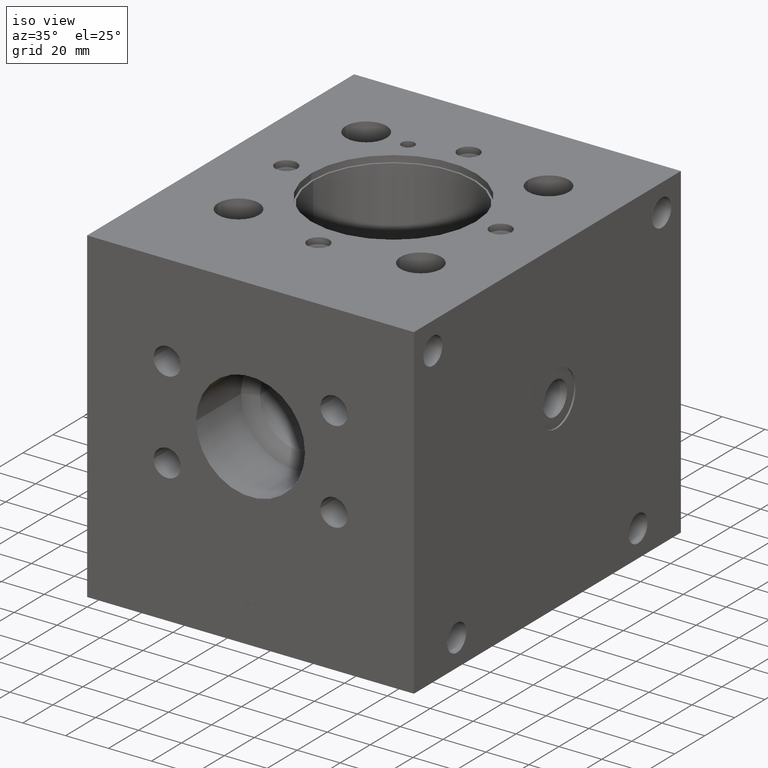
[diagram: clean part render]
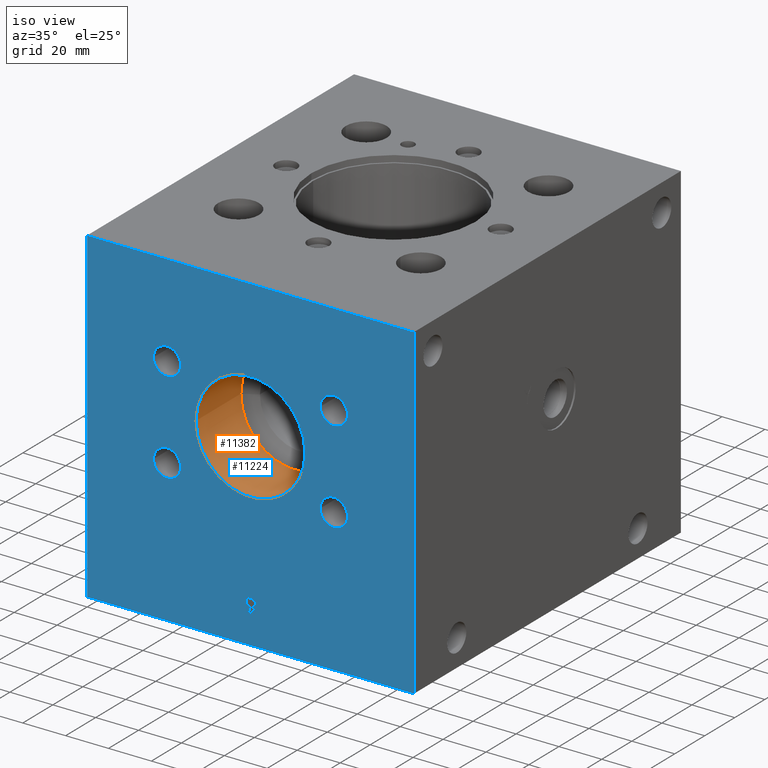
[diagram: same view with the hole feature highlighted: cylindrical wall and planar end face, labeled with their STEP entity ids]
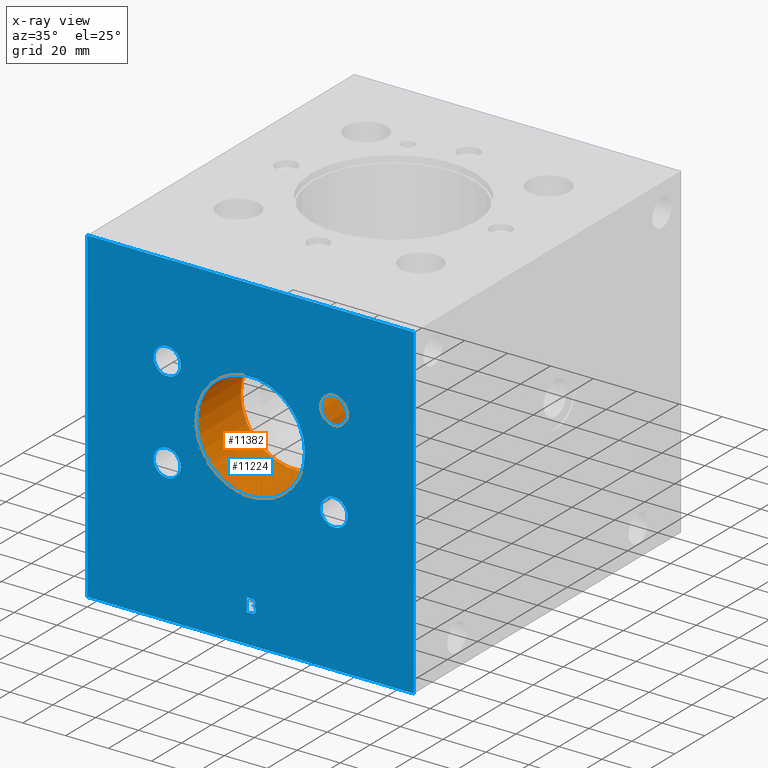
[diagram: x-ray of the same camera — body ghosted, the hole faces saturated]
A machine part, iso view. The highlighted faces form one hole feature of diameter 50.8 mm: the cylindrical wall (entity #11382, orange) and its adjacent planar end face (entity #11224, blue) — they share a circular edge in the B-rep.
The next image is the same camera in x-ray (body ghosted, the hole faces saturated) — the bore reads through the body.
Wall:
#54=CYLINDRICAL_SURFACE('',#12035,25.4);
#168=CIRCLE('',#11771,25.4);
#169=CIRCLE('',#11772,25.4);
#285=CIRCLE('',#12033,25.4);
#286=CIRCLE('',#12034,25.4);
#1310=FACE_OUTER_BOUND('',#1964,.T.);
#1964=EDGE_LOOP('',(#9668,#9669,#9670,#9671,#9672,#9673));
#3117=LINE('',#19004,#4220);
#4220=VECTOR('',#14406,25.4);
#5017=VERTEX_POINT('',#18148);
#5018=VERTEX_POINT('',#18149);
#5230=VERTEX_POINT('',#18998);
#5231=VERTEX_POINT('',#18999);
#6428=EDGE_CURVE('',#5017,#5018,#168,.T.);
#6429=EDGE_CURVE('',#5018,#5017,#169,.T.);
#6755=EDGE_CURVE('',#5230,#5231,#285,.T.);
#6757=EDGE_CURVE('',#5231,#5230,#286,.T.);
#6758=EDGE_CURVE('',#5018,#5231,#3117,.T.);
#9668=ORIENTED_EDGE('',*,*,#6428,.F.);
#9669=ORIENTED_EDGE('',*,*,#6429,.F.);
#9670=ORIENTED_EDGE('',*,*,#6758,.T.);
#9671=ORIENTED_EDGE('',*,*,#6755,.F.);
#9672=ORIENTED_EDGE('',*,*,#6757,.F.);
#9673=ORIENTED_EDGE('',*,*,#6758,.F.);
#11382=ADVANCED_FACE('',(#1310),#54,.F.);
#11771=AXIS2_PLACEMENT_3D('',#18150,#13678,#13679);
#11772=AXIS2_PLACEMENT_3D('',#18151,#13680,#13681);
#12033=AXIS2_PLACEMENT_3D('',#19000,#14399,#14400);
#12034=AXIS2_PLACEMENT_3D('',#19002,#14402,#14403);
#12035=AXIS2_PLACEMENT_3D('',#19003,#14404,#14405);
#13678=DIRECTION('center_axis',(0.,1.,0.));
#13679=DIRECTION('ref_axis',(1.,0.,0.));
#13680=DIRECTION('center_axis',(0.,1.,0.));
#13681=DIRECTION('ref_axis',(1.,0.,0.));
#14399=DIRECTION('center_axis',(0.,-1.,0.));
#14400=DIRECTION('ref_axis',(1.,0.,0.));
#14402=DIRECTION('center_axis',(0.,-1.,0.));
#14403=DIRECTION('ref_axis',(1.,0.,0.));
#14404=DIRECTION('center_axis',(0.,-1.,0.));
#14405=DIRECTION('ref_axis',(1.,0.,0.));
#14406=DIRECTION('',(0.,1.,0.));
#18148=CARTESIAN_POINT('',(101.6,0.,87.9094));
#18149=CARTESIAN_POINT('',(50.8,0.,87.9094));
#18150=CARTESIAN_POINT('Origin',(76.2,0.,87.9094));
#18151=CARTESIAN_POINT('Origin',(76.2,0.,87.9094));
#18998=CARTESIAN_POINT('',(101.6,29.7942,87.9094));
#18999=CARTESIAN_POINT('',(50.8,29.7942,87.9094));
#19000=CARTESIAN_POINT('Origin',(76.2,29.7942,87.9094));
#19002=CARTESIAN_POINT('Origin',(76.2,29.7942,87.9094));
#19003=CARTESIAN_POINT('Origin',(76.2,14.8971,87.9094));
#19004=CARTESIAN_POINT('',(50.8,14.8971,87.9094));
End face:
#160=CIRCLE('',#11763,6.35);
#161=CIRCLE('',#11764,6.35);
#162=CIRCLE('',#11765,6.35);
#163=CIRCLE('',#11766,6.35);
#164=CIRCLE('',#11767,6.35);
#165=CIRCLE('',#11768,6.35);
#166=CIRCLE('',#11769,6.35);
#167=CIRCLE('',#11770,6.35);
#168=CIRCLE('',#11771,25.4);
#169=CIRCLE('',#11772,25.4);
#461=FACE_BOUND('',#1783,.T.);
#462=FACE_BOUND('',#1784,.T.);
#463=FACE_BOUND('',#1785,.T.);
#464=FACE_BOUND('',#1786,.T.);
#465=FACE_BOUND('',#1787,.T.);
#466=FACE_BOUND('',#1788,.T.);
#685=B_SPLINE_CURVE_WITH_KNOTS('',2,(#17999,#18000,#18001,#18002),
 .UNSPECIFIED.,.F.,.F.,(3,1,3),(0.,1.,2.),.UNSPECIFIED.);
#687=B_SPLINE_CURVE_WITH_KNOTS('',2,(#18026,#18027,#18028,#18029),
 .UNSPECIFIED.,.F.,.F.,(3,1,3),(0.,1.,2.),.UNSPECIFIED.);
#689=B_SPLINE_CURVE_WITH_KNOTS('',2,(#18045,#18046,#18047,#18048),
 .UNSPECIFIED.,.F.,.F.,(3,1,3),(0.,1.,2.),.UNSPECIFIED.);
#691=B_SPLINE_CURVE_WITH_KNOTS('',2,(#18064,#18065,#18066,#18067),
 .UNSPECIFIED.,.F.,.F.,(3,1,3),(0.,1.,2.),.UNSPECIFIED.);
#693=B_SPLINE_CURVE_WITH_KNOTS('',2,(#18101,#18102,#18103,#18104),
 .UNSPECIFIED.,.F.,.F.,(3,1,3),(0.,1.,2.),.UNSPECIFIED.);
#695=B_SPLINE_CURVE_WITH_KNOTS('',2,(#18119,#18120,#18121,#18122),
 .UNSPECIFIED.,.F.,.F.,(3,1,3),(0.,1.,2.),.UNSPECIFIED.);
#1152=FACE_OUTER_BOUND('',#1782,.T.);
#1782=EDGE_LOOP('',(#8918,#8919,#8920,#8921));
#1783=EDGE_LOOP('',(#8922,#8923,#8924,#8925,#8926,#8927,#8928,#8929,#8930,
#8931));
#1784=EDGE_LOOP('',(#8932,#8933));
#1785=EDGE_LOOP('',(#8934,#8935));
#1786=EDGE_LOOP('',(#8936,#8937));
#1787=EDGE_LOOP('',(#8938,#8939));
#1788=EDGE_LOOP('',(#8940,#8941));
#2409=LINE('',#16615,#3512);
#2870=LINE('',#17761,#3973);
#2901=LINE('',#18013,#4004);
#2907=LINE('',#18076,#4010);
#2910=LINE('',#18082,#4013);
#2913=LINE('',#18088,#4016);
#2917=LINE('',#18130,#4020);
#2918=LINE('',#18131,#4021);
#3512=VECTOR('',#12778,10.);
#3973=VECTOR('',#13553,10.);
#4004=VECTOR('',#13634,10.);
#4010=VECTOR('',#13642,10.);
#4013=VECTOR('',#13647,10.);
#4016=VECTOR('',#13652,10.);
#4020=VECTOR('',#13660,10.);
#4021=VECTOR('',#13661,10.);
#4587=VERTEX_POINT('',#16612);
#4588=VERTEX_POINT('',#16614);
#4940=VERTEX_POINT('',#17760);
#4988=VERTEX_POINT('',#17997);
#4989=VERTEX_POINT('',#17998);
#4992=VERTEX_POINT('',#18012);
#4994=VERTEX_POINT('',#18025);
#4996=VERTEX_POINT('',#18044);
#4998=VERTEX_POINT('',#18063);
#5000=VERTEX_POINT('',#18075);
#5002=VERTEX_POINT('',#18081);
#5004=VERTEX_POINT('',#18087);
#5006=VERTEX_POINT('',#18100);
#5008=VERTEX_POINT('',#18129);
#5009=VERTEX_POINT('',#18132);
#5010=VERTEX_POINT('',#18133);
#5011=VERTEX_POINT('',#18136);
#5012=VERTEX_POINT('',#18137);
#5013=VERTEX_POINT('',#18140);
#5014=VERTEX_POINT('',#18141);
#5015=VERTEX_POINT('',#18144);
#5016=VERTEX_POINT('',#18145);
#5017=VERTEX_POINT('',#18148);
#5018=VERTEX_POINT('',#18149);
#5830=EDGE_CURVE('',#4587,#4588,#2409,.T.);
#6325=EDGE_CURVE('',#4587,#4940,#2870,.T.);
#6388=EDGE_CURVE('',#4988,#4989,#685,.T.);
#6392=EDGE_CURVE('',#4992,#4988,#2901,.T.);
#6395=EDGE_CURVE('',#4994,#4992,#687,.T.);
#6398=EDGE_CURVE('',#4996,#4994,#689,.T.);
#6401=EDGE_CURVE('',#4998,#4996,#691,.T.);
#6404=EDGE_CURVE('',#5000,#4998,#2907,.T.);
#6407=EDGE_CURVE('',#5002,#5000,#2910,.T.);
#6410=EDGE_CURVE('',#5004,#5002,#2913,.T.);
#6413=EDGE_CURVE('',#5006,#5004,#693,.T.);
#6416=EDGE_CURVE('',#4989,#5006,#695,.T.);
#6418=EDGE_CURVE('',#4940,#5008,#2917,.T.);
#6419=EDGE_CURVE('',#4588,#5008,#2918,.T.);
#6420=EDGE_CURVE('',#5009,#5010,#160,.T.);
#6421=EDGE_CURVE('',#5010,#5009,#161,.T.);
#6422=EDGE_CURVE('',#5011,#5012,#162,.T.);
#6423=EDGE_CURVE('',#5012,#5011,#163,.T.);
#6424=EDGE_CURVE('',#5013,#5014,#164,.T.);
#6425=EDGE_CURVE('',#5014,#5013,#165,.T.);
#6426=EDGE_CURVE('',#5015,#5016,#166,.T.);
#6427=EDGE_CURVE('',#5016,#5015,#167,.T.);
#6428=EDGE_CURVE('',#5017,#5018,#168,.T.);
#6429=EDGE_CURVE('',#5018,#5017,#169,.T.);
#8918=ORIENTED_EDGE('',*,*,#6325,.T.);
#8919=ORIENTED_EDGE('',*,*,#6418,.T.);
#8920=ORIENTED_EDGE('',*,*,#6419,.F.);
#8921=ORIENTED_EDGE('',*,*,#5830,.F.);
#8922=ORIENTED_EDGE('',*,*,#6388,.T.);
#8923=ORIENTED_EDGE('',*,*,#6416,.T.);
#8924=ORIENTED_EDGE('',*,*,#6413,.T.);
#8925=ORIENTED_EDGE('',*,*,#6410,.T.);
#8926=ORIENTED_EDGE('',*,*,#6407,.T.);
#8927=ORIENTED_EDGE('',*,*,#6404,.T.);
#8928=ORIENTED_EDGE('',*,*,#6401,.T.);
#8929=ORIENTED_EDGE('',*,*,#6398,.T.);
#8930=ORIENTED_EDGE('',*,*,#6395,.T.);
#8931=ORIENTED_EDGE('',*,*,#6392,.T.);
#8932=ORIENTED_EDGE('',*,*,#6420,.T.);
#8933=ORIENTED_EDGE('',*,*,#6421,.T.);
#8934=ORIENTED_EDGE('',*,*,#6422,.T.);
#8935=ORIENTED_EDGE('',*,*,#6423,.T.);
#8936=ORIENTED_EDGE('',*,*,#6424,.T.);
#8937=ORIENTED_EDGE('',*,*,#6425,.T.);
#8938=ORIENTED_EDGE('',*,*,#6426,.T.);
#8939=ORIENTED_EDGE('',*,*,#6427,.T.);
#8940=ORIENTED_EDGE('',*,*,#6428,.T.);
#8941=ORIENTED_EDGE('',*,*,#6429,.T.);
#10360=PLANE('',#11762);
#11224=ADVANCED_FACE('',(#1152,#461,#462,#463,#464,#465,#466),#10360,.T.);
#11762=AXIS2_PLACEMENT_3D('',#18128,#13658,#13659);
#11763=AXIS2_PLACEMENT_3D('',#18134,#13662,#13663);
#11764=AXIS2_PLACEMENT_3D('',#18135,#13664,#13665);
#11765=AXIS2_PLACEMENT_3D('',#18138,#13666,#13667);
#11766=AXIS2_PLACEMENT_3D('',#18139,#13668,#13669);
#11767=AXIS2_PLACEMENT_3D('',#18142,#13670,#13671);
#11768=AXIS2_PLACEMENT_3D('',#18143,#13672,#13673);
#11769=AXIS2_PLACEMENT_3D('',#18146,#13674,#13675);
#11770=AXIS2_PLACEMENT_3D('',#18147,#13676,#13677);
#11771=AXIS2_PLACEMENT_3D('',#18150,#13678,#13679);
#11772=AXIS2_PLACEMENT_3D('',#18151,#13680,#13681);
#12778=DIRECTION('',(0.,0.,1.));
#13553=DIRECTION('',(1.,0.,0.));
#13634=DIRECTION('',(0.,0.,-1.));
#13642=DIRECTION('',(1.,0.,0.));
#13647=DIRECTION('',(0.,0.,1.));
#13652=DIRECTION('',(-1.,0.,0.));
#13658=DIRECTION('center_axis',(0.,-1.,0.));
#13659=DIRECTION('ref_axis',(1.,0.,0.));
#13660=DIRECTION('',(0.,0.,1.));
#13661=DIRECTION('',(1.,0.,0.));
#13662=DIRECTION('center_axis',(0.,1.,0.));
#13663=DIRECTION('ref_axis',(1.,0.,0.));
#13664=DIRECTION('center_axis',(0.,1.,0.));
#13665=DIRECTION('ref_axis',(1.,0.,0.));
#13666=DIRECTION('center_axis',(0.,1.,0.));
#13667=DIRECTION('ref_axis',(1.,0.,0.));
#13668=DIRECTION('center_axis',(0.,1.,0.));
#13669=DIRECTION('ref_axis',(1.,0.,0.));
#13670=DIRECTION('center_axis',(0.,1.,0.));
#13671=DIRECTION('ref_axis',(1.,0.,0.));
#13672=DIRECTION('center_axis',(0.,1.,0.));
#13673=DIRECTION('ref_axis',(1.,0.,0.));
#13674=DIRECTION('center_axis',(0.,1.,0.));
#13675=DIRECTION('ref_axis',(1.,0.,0.));
#13676=DIRECTION('center_axis',(0.,1.,0.));
#13677=DIRECTION('ref_axis',(1.,0.,0.));
#13678=DIRECTION('center_axis',(0.,1.,0.));
#13679=DIRECTION('ref_axis',(1.,0.,0.));
#13680=DIRECTION('center_axis',(0.,1.,0.));
#13681=DIRECTION('ref_axis',(1.,0.,0.));
#16612=CARTESIAN_POINT('',(0.,0.,0.));
#16614=CARTESIAN_POINT('',(0.,0.,152.4));
#16615=CARTESIAN_POINT('',(0.,0.,0.));
#17760=CARTESIAN_POINT('',(152.4,0.,0.));
#17761=CARTESIAN_POINT('',(0.,0.,0.));
#17997=CARTESIAN_POINT('',(77.5803787927767,0.,17.0238147768055));
#17998=CARTESIAN_POINT('',(78.7690740747622,0.,15.4440336011797));
#17999=CARTESIAN_POINT('Ctrl Pts',(77.5803787927767,0.,17.0238147768055));
#18000=CARTESIAN_POINT('Ctrl Pts',(78.1464241651507,0.,16.869438766158));
#18001=CARTESIAN_POINT('Ctrl Pts',(78.7690740747622,0.,16.0512459097264));
#18002=CARTESIAN_POINT('Ctrl Pts',(78.7690740747622,0.,15.4440336011797));
#18012=CARTESIAN_POINT('',(77.5803787927767,0.,17.054689978935));
#18013=CARTESIAN_POINT('',(77.5803787927767,0.,8.52734498946748));
#18025=CARTESIAN_POINT('',(78.4706137875104,0.,18.4131988726327));
#18026=CARTESIAN_POINT('Ctrl Pts',(78.4706137875104,0.,18.4131988726327));
#18027=CARTESIAN_POINT('Ctrl Pts',(78.4706137875104,0.,17.965508441755));
#18028=CARTESIAN_POINT('Ctrl Pts',(77.9971940215248,0.,17.2553787927767));
#18029=CARTESIAN_POINT('Ctrl Pts',(77.5803787927767,0.,17.054689978935));
#18044=CARTESIAN_POINT('',(77.8119428087479,0.,19.5864565535535));
#18045=CARTESIAN_POINT('Ctrl Pts',(77.8119428087479,0.,19.5864565535535));
#18046=CARTESIAN_POINT('Ctrl Pts',(78.1567158991939,0.,19.4063512077981));
#18047=CARTESIAN_POINT('Ctrl Pts',(78.4706137875104,0.,18.8145765003161));
#18048=CARTESIAN_POINT('Ctrl Pts',(78.4706137875104,0.,18.4131988726327));
#18063=CARTESIAN_POINT('',(76.1446818937552,0.,19.8437499046326));
#18064=CARTESIAN_POINT('Ctrl Pts',(76.1446818937552,0.,19.8437499046326));
#18065=CARTESIAN_POINT('Ctrl Pts',(76.8239363406041,0.,19.8437499046326));
#18066=CARTESIAN_POINT('Ctrl Pts',(77.5031907874529,0.,19.7562701652657));
#18067=CARTESIAN_POINT('Ctrl Pts',(77.8119428087479,0.,19.5864565535535));
#18075=CARTESIAN_POINT('',(74.4619833776978,0.,19.8437499046326));
#18076=CARTESIAN_POINT('',(37.2309916888489,0.,19.8437499046326));
#18081=CARTESIAN_POINT('',(74.4619833776978,0.,13.49375));
#18082=CARTESIAN_POINT('',(74.4619833776978,0.,6.746875));
#18087=CARTESIAN_POINT('',(76.2836203033379,0.,13.49375));
#18088=CARTESIAN_POINT('',(38.141810151669,0.,13.49375));
#18100=CARTESIAN_POINT('',(78.1104030959996,0.,14.0083367021582));
#18101=CARTESIAN_POINT('Ctrl Pts',(78.1104030959996,0.,14.0083367021582));
#18102=CARTESIAN_POINT('Ctrl Pts',(77.7501924044889,0.,13.7304598829928));
#18103=CARTESIAN_POINT('Ctrl Pts',(76.9319995480573,0.,13.49375));
#18104=CARTESIAN_POINT('Ctrl Pts',(76.2836203033379,0.,13.49375));
#18119=CARTESIAN_POINT('Ctrl Pts',(78.7690740747622,0.,15.4440336011797));
#18120=CARTESIAN_POINT('Ctrl Pts',(78.7690740747622,0.,14.9706138351941));
#18121=CARTESIAN_POINT('Ctrl Pts',(78.4088633832514,0.,14.245046585151));
#18122=CARTESIAN_POINT('Ctrl Pts',(78.1104030959996,0.,14.0083367021582));
#18128=CARTESIAN_POINT('Origin',(0.,0.,0.));
#18129=CARTESIAN_POINT('',(152.4,0.,152.4));
#18130=CARTESIAN_POINT('',(152.4,0.,0.));
#18131=CARTESIAN_POINT('',(0.,0.,152.4));
#18132=CARTESIAN_POINT('',(43.6626,0.,109.347));
#18133=CARTESIAN_POINT('',(30.9626,-2.22044604925031E-15,109.347));
#18134=CARTESIAN_POINT('Origin',(37.3126,0.,109.347));
#18135=CARTESIAN_POINT('Origin',(37.3126,0.,109.347));
#18136=CARTESIAN_POINT('',(121.4374,0.,66.4718));
#18137=CARTESIAN_POINT('',(108.7374,-2.22044604925031E-15,66.4718));
#18138=CARTESIAN_POINT('Origin',(115.0874,0.,66.4718));
#18139=CARTESIAN_POINT('Origin',(115.0874,0.,66.4718));
#18140=CARTESIAN_POINT('',(43.6626,0.,66.4718));
#18141=CARTESIAN_POINT('',(30.9626,-2.22044604925031E-15,66.4718));
#18142=CARTESIAN_POINT('Origin',(37.3126,0.,66.4718));
#18143=CARTESIAN_POINT('Origin',(37.3126,0.,66.4718));
#18144=CARTESIAN_POINT('',(121.4374,0.,109.347));
#18145=CARTESIAN_POINT('',(108.7374,-2.22044604925031E-15,109.347));
#18146=CARTESIAN_POINT('Origin',(115.0874,0.,109.347));
#18147=CARTESIAN_POINT('Origin',(115.0874,0.,109.347));
#18148=CARTESIAN_POINT('',(101.6,0.,87.9094));
#18149=CARTESIAN_POINT('',(50.8,0.,87.9094));
#18150=CARTESIAN_POINT('Origin',(76.2,0.,87.9094));
#18151=CARTESIAN_POINT('Origin',(76.2,0.,87.9094));